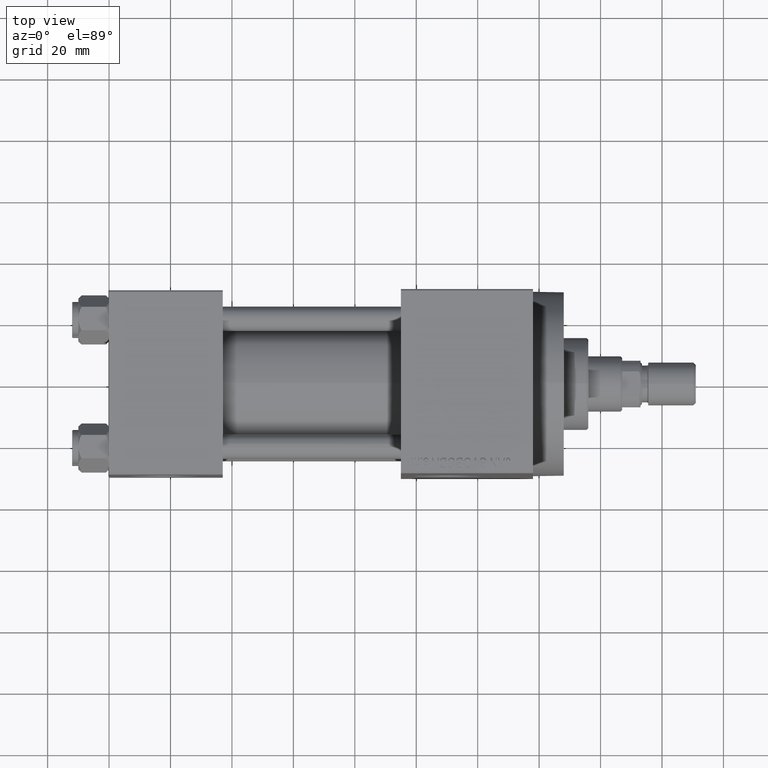
[diagram: clean part render]
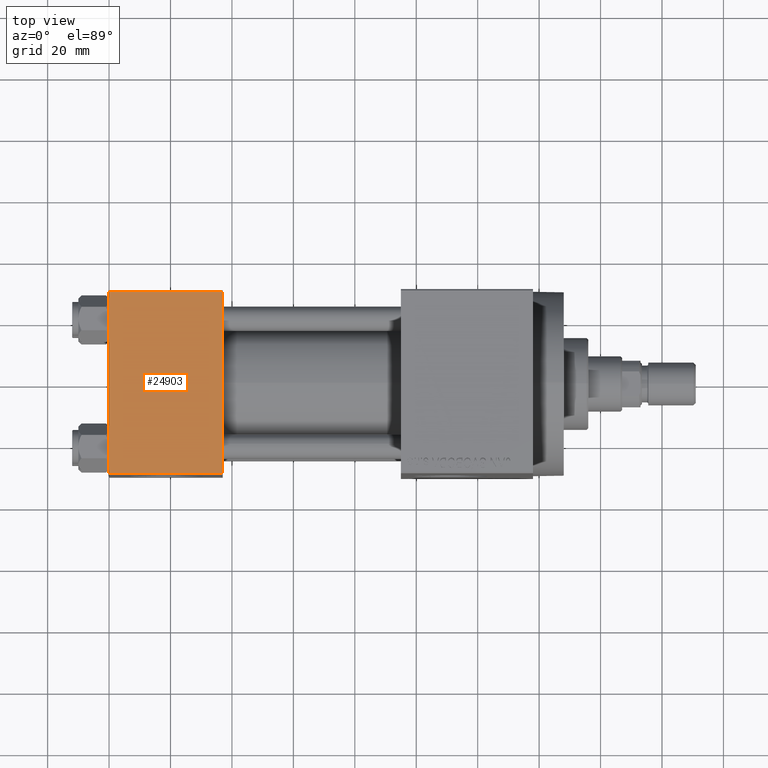
[diagram: same view with one face highlighted and labeled with its STEP entity id]
A machine part, top view. The second image highlights one B-rep face of the part: STEP entity #24903.
In plain terms, the highlighted planar face has unit normal (0, 0, -1).
Its self-contained STEP definition (entity closure, byte-faithful):
#241 = ORIENTED_EDGE ( 'NONE', *, *, #18991, .T. ) ;
#2484 = EDGE_CURVE ( 'NONE', #14768, #47076, #23025, .T. ) ;
#2752 = CARTESIAN_POINT ( 'NONE',  ( 0.000000000000000000, -29.49999999999998579, 29.99999999999999289 ) ) ;
#3429 = CARTESIAN_POINT ( 'NONE',  ( 37.00000000000000000, 29.49999999999999289, 30.00000000000000000 ) ) ;
#4463 = VERTEX_POINT ( 'NONE', #3429 ) ;
#8665 = PLANE ( 'NONE',  #31695 ) ;
#10807 = CARTESIAN_POINT ( 'NONE',  ( 37.00000000000000000, -29.49999999999998579, 29.99999999999999289 ) ) ;
#11266 = DIRECTION ( 'NONE',  ( 0.000000000000000000, -1.000000000000000000, -1.156482317317871725E-16 ) ) ;
#11276 = ORIENTED_EDGE ( 'NONE', *, *, #2484, .T. ) ;
#11375 = ORIENTED_EDGE ( 'NONE', *, *, #40324, .T. ) ;
#12123 = DIRECTION ( 'NONE',  ( 0.000000000000000000, -1.000000000000000000, -1.156482317317871725E-16 ) ) ;
#14768 = VERTEX_POINT ( 'NONE', #34920 ) ;
#15660 = VECTOR ( 'NONE', #12123, 1000.000000000000000 ) ;
#18547 = LINE ( 'NONE', #29692, #22284 ) ;
#18991 = EDGE_CURVE ( 'NONE', #47076, #19018, #18547, .T. ) ;
#19018 = VERTEX_POINT ( 'NONE', #10807 ) ;
#22284 = VECTOR ( 'NONE', #28737, 1000.000000000000000 ) ;
#22501 = ORIENTED_EDGE ( 'NONE', *, *, #39059, .F. ) ;
#22890 = CARTESIAN_POINT ( 'NONE',  ( 37.00000000000000000, 29.99999999999999289, 30.00000000000000000 ) ) ;
#23025 = LINE ( 'NONE', #30541, #15660 ) ;
#23674 = DIRECTION ( 'NONE',  ( 0.000000000000000000, 1.000000000000000000, 1.156482317317871725E-16 ) ) ;
#23914 = VECTOR ( 'NONE', #27536, 1000.000000000000000 ) ;
#24903 = ADVANCED_FACE ( 'NONE', ( #38440 ), #8665, .F. ) ;
#27536 = DIRECTION ( 'NONE',  ( -1.000000000000000000, 0.000000000000000000, 0.000000000000000000 ) ) ;
#27541 = DIRECTION ( 'NONE',  ( 0.000000000000000000, 1.156482317317871725E-16, -1.000000000000000000 ) ) ;
#28737 = DIRECTION ( 'NONE',  ( 1.000000000000000000, 0.000000000000000000, 0.000000000000000000 ) ) ;
#28914 = LINE ( 'NONE', #42301, #23914 ) ;
#29692 = CARTESIAN_POINT ( 'NONE',  ( 37.00000000000000000, -29.50000000000000000, 29.99999999999999289 ) ) ;
#30541 = CARTESIAN_POINT ( 'NONE',  ( 0.000000000000000000, 29.99999999999999289, 30.00000000000000000 ) ) ;
#30959 = CARTESIAN_POINT ( 'NONE',  ( 37.00000000000000000, 29.99999999999999289, 30.00000000000000000 ) ) ;
#31695 = AXIS2_PLACEMENT_3D ( 'NONE', #30959, #27541, #23674 ) ;
#33799 = LINE ( 'NONE', #22890, #37050 ) ;
#34920 = CARTESIAN_POINT ( 'NONE',  ( 0.000000000000000000, 29.49999999999999289, 30.00000000000000000 ) ) ;
#37050 = VECTOR ( 'NONE', #11266, 1000.000000000000000 ) ;
#38440 = FACE_OUTER_BOUND ( 'NONE', #42427, .T. ) ;
#39059 = EDGE_CURVE ( 'NONE', #4463, #19018, #33799, .T. ) ;
#40324 = EDGE_CURVE ( 'NONE', #4463, #14768, #28914, .T. ) ;
#42301 = CARTESIAN_POINT ( 'NONE',  ( 0.000000000000000000, 29.49999999999999289, 30.00000000000000000 ) ) ;
#42427 = EDGE_LOOP ( 'NONE', ( #11276, #241, #22501, #11375 ) ) ;
#47076 = VERTEX_POINT ( 'NONE', #2752 ) ;